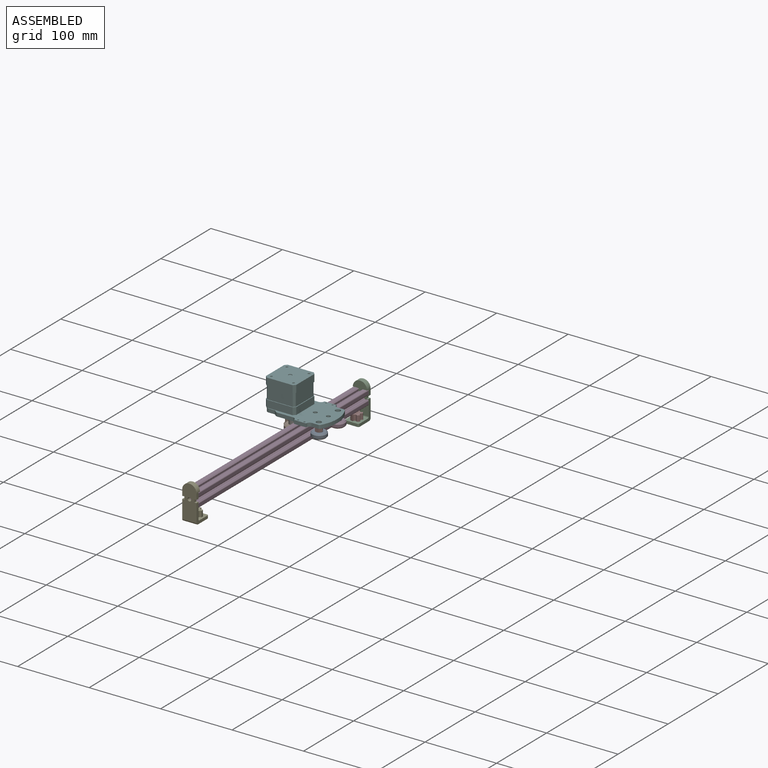
[diagram: assembled view]
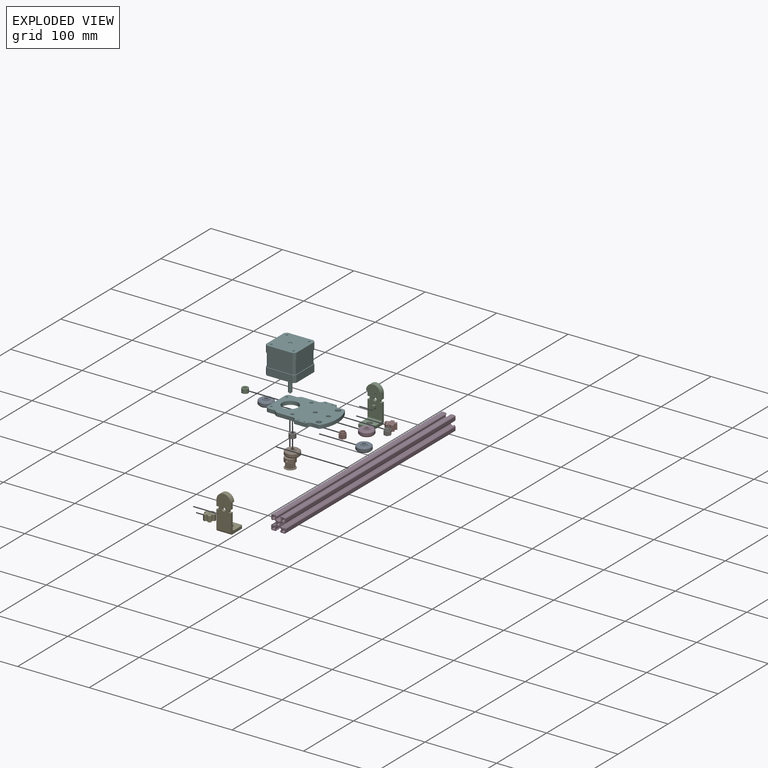
[diagram: exploded view]
GUIDED TOUR — MATED ASSEMBLY (Onshape document 58c58c23786ec50fe9e0f8d5, AutoMate assembly 58c58c23786ec50fe9e0f8d5_e4c704c081de971c1201e322_0e69b5b07482ab1bf563af40_default)

This assembly has 16 components, labeled P0..P15 below (a component is one placed occurrence of a part; the same part can appear more than once), held together by 11 mates. A mate is a constraint between two components; its type names the relative motion it leaves free:
  FASTENED — locks the two components together rigidly (no relative motion).
Axis/direction vectors are unit vectors and 'through' points are millimeter coordinates, both in the assembly's world frame.

MATES
  1. FASTENED "Fastened 5": P12 <-> P11, direction (0.000, 1.000, 0.000) through (-5.65, -187.65, -31.54) mm
  2. FASTENED "Fastened 4": P4 <-> P12, direction (0.000, 0.000, -1.000) through (-5.65, -177.64, -57.53) mm
  3. FASTENED "Fastened 2": P5 <-> P13, direction (0.000, 0.000, 1.000) through (-38.73, 57.13, -15.95) mm
  4. FASTENED "Fastened 15": P9 <-> P13, direction (0.000, 0.000, -1.000) through (-38.73, 57.13, -39.95) mm
  5. FASTENED "Fastened 3": P5 <-> P14, direction (0.000, 0.000, -1.000) through (-22.29, 38.07, -20.95) mm
  6. FASTENED "Fastened 7": P0 <-> P2, direction (0.000, 0.000, 1.000) through (-22.28, 75.07, -26.95) mm
  7. FASTENED "Fastened 7": P1 <-> P14, direction (0.000, 0.000, 1.000) through (-22.29, 38.07, -26.95) mm
  8. FASTENED "Fastened 8": P15 <-> P10, direction (0.000, 0.000, -1.000) through (-5.65, 142.36, -57.46) mm
  9. FASTENED "Fastened 1": P7 <-> P8, direction (0.000, 0.000, -1.000) through (14.72, 38.86, -26.95) mm
  10. FASTENED "Fastened 6": P10 <-> P11, direction (0.000, -1.000, 0.000) through (-5.65, 152.35, -31.46) mm
  11. FASTENED "Fastened 1": P6 <-> P3, direction (0.000, 0.000, -1.000) through (14.72, 75.86, -26.95) mm

ASSEMBLY ORDER
  1. P13 — the base component [order verified]
  2. P5 [order verified]
  3. P9 [order verified]
  4. P7 [order verified]
  5. P12 [order verified]
  6. P11 [order verified]
  7. P10 [order verified]
  8. P6 [order verified]
  9. P14 [order verified]
  10. P1 [order verified]
  11. P2 [order verified]
  12. P15 [order verified]
  13. P4 [order verified]
  14. P0 [order verified]
  15. P8 [order verified]
  16. P3 [order verified]
(P7, P9, P10 verified with a relaxed clearance tolerance: the source model stores slight part interference there.)
Order-tag legend:
  [order verified] — this step's position reverses a verified removal order: the component was checked to insert without passing through the ones already placed.

Of the 16 components, 4 carry the full construction recipe — the FeatureScript program that regenerates the part's solid from scratch; the rest are supplied as boundary geometry only.
Because this assembly has more than 12 components, the tour below covers the 12 most significant ones individually (every recipe-attached component first, then the largest by part volume), in assembly order; the remaining 4 are summarized together in a grouped section at the end.
Each toured component is shown spotlighted twice — in the assembled view, then in the exploded view, where a leader line traces a displaced component back to its assembled socket (saturated green if recipe-attached, orange if geometry-only; every other component desaturated gray) — followed by its recipe or geometry summary and the mates that hold it.
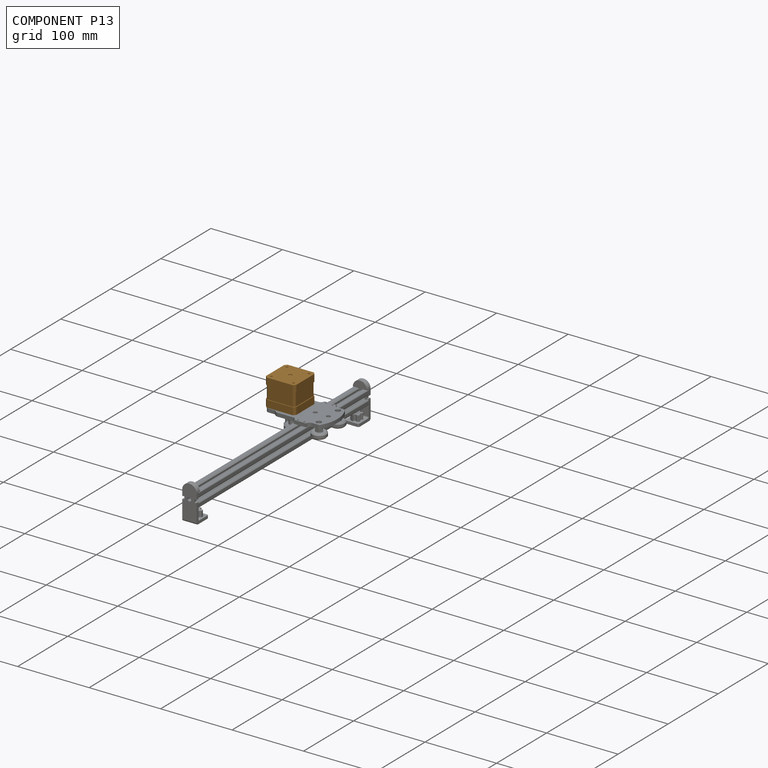
[diagram: component P13 — assembled]
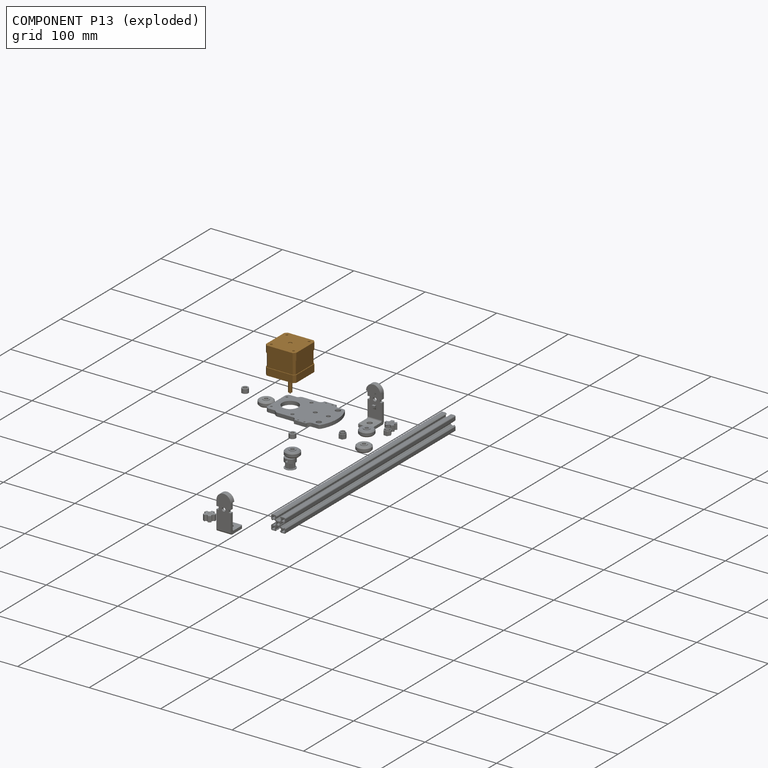
[diagram: component P13 — exploded]
COMPONENT P13 — geometry summary (no construction recipe available for this part):
  bounding box: 62.0 x 42.3 x 42.3 mm
  B-rep topology: 1 solid, 38 faces, 196 edges
  volume: 64548 mm^3 (58% of its bounding box)
  symmetry: 4-fold rotationally symmetric about the y axis; mirror-symmetric across its x mid-plane, z mid-plane
Held by: FASTENED mate "Fastened 2" to P5; FASTENED mate "Fastened 15" to P9.
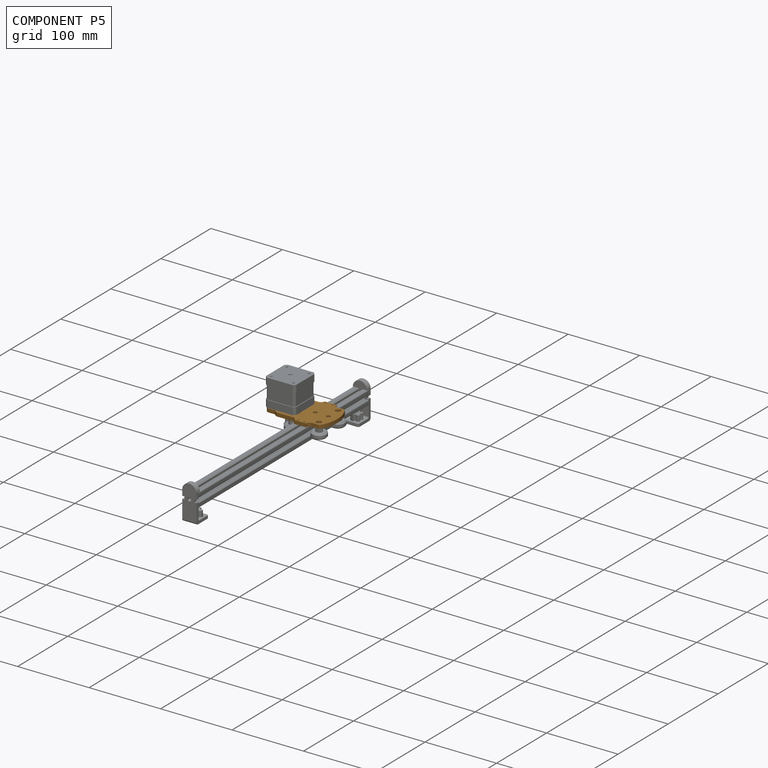
[diagram: component P5 — assembled]
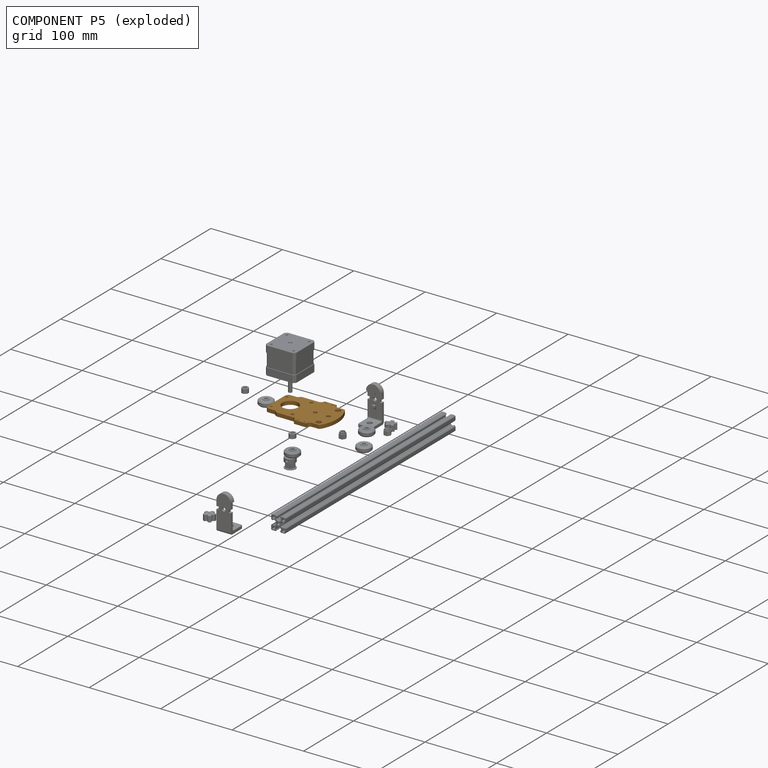
[diagram: component P5 — exploded]
COMPONENT P5 — geometry summary (no construction recipe available for this part):
  bounding box: 85.6 x 61.2 x 5.0 mm
  B-rep topology: 1 solid, 38 faces, 216 edges
  volume: 18715 mm^3 (71% of its bounding box)
  symmetry: 2-fold rotationally symmetric about the x axis; mirror-symmetric across its y mid-plane, z mid-plane
Held by: FASTENED mate "Fastened 2" to P13; FASTENED mate "Fastened 3" to P14.
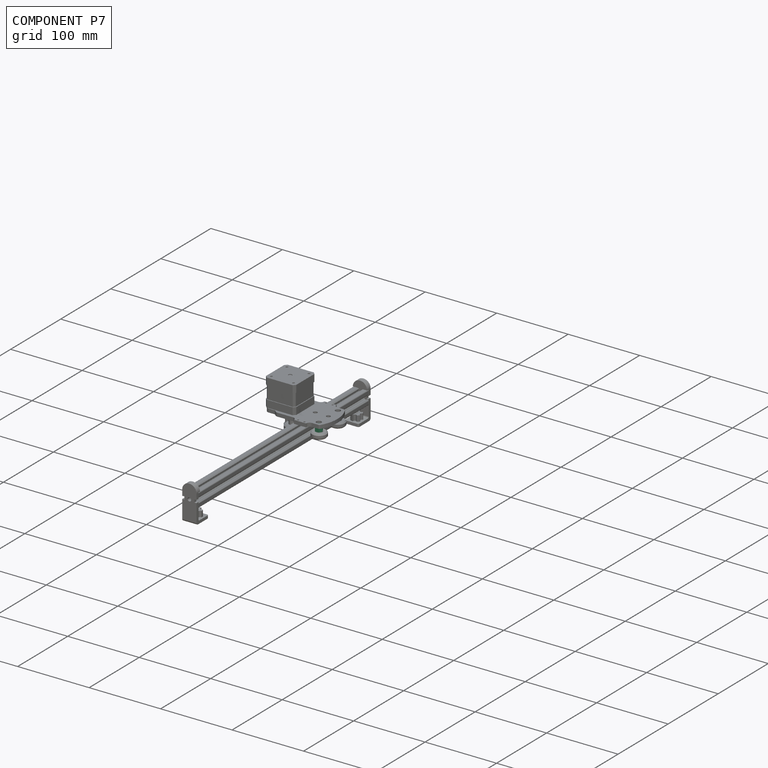
[diagram: component P7 — assembled]
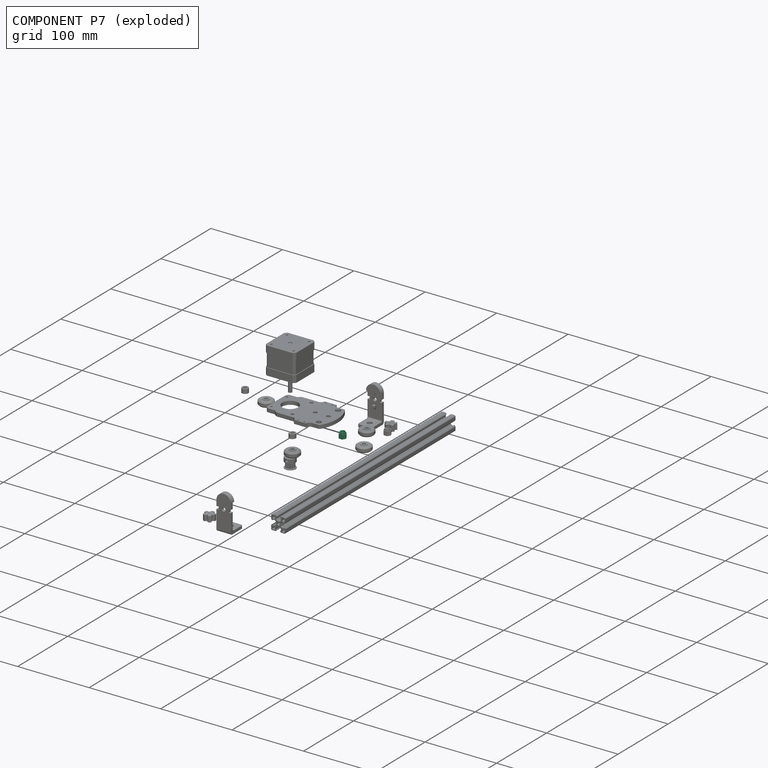
[diagram: component P7 — exploded]
COMPONENT P7 — same part as P6 (CADFS 00084789); its construction recipe is shown at P6.
Held by: FASTENED mate "Fastened 1" to P8.
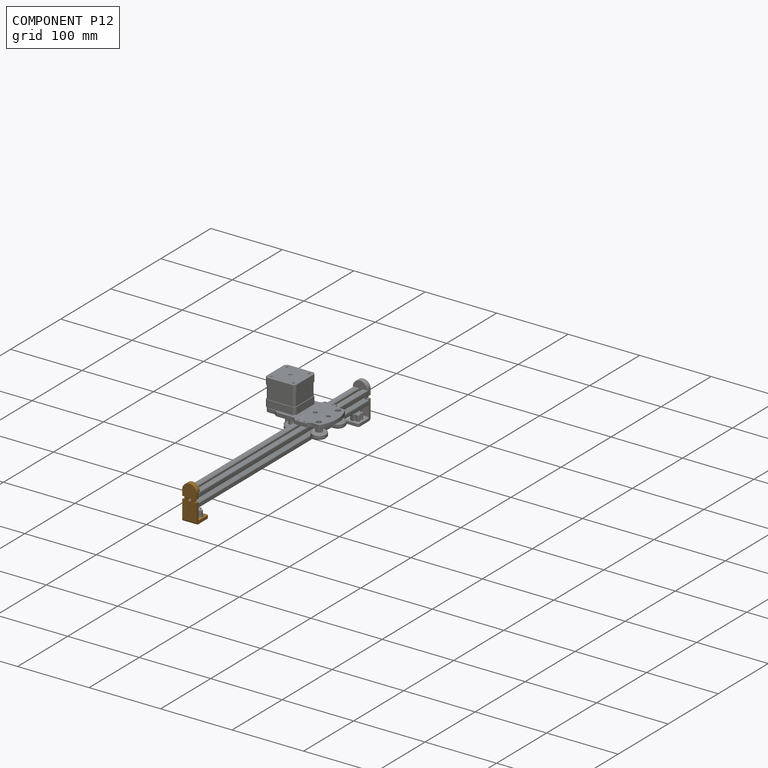
[diagram: component P12 — assembled]
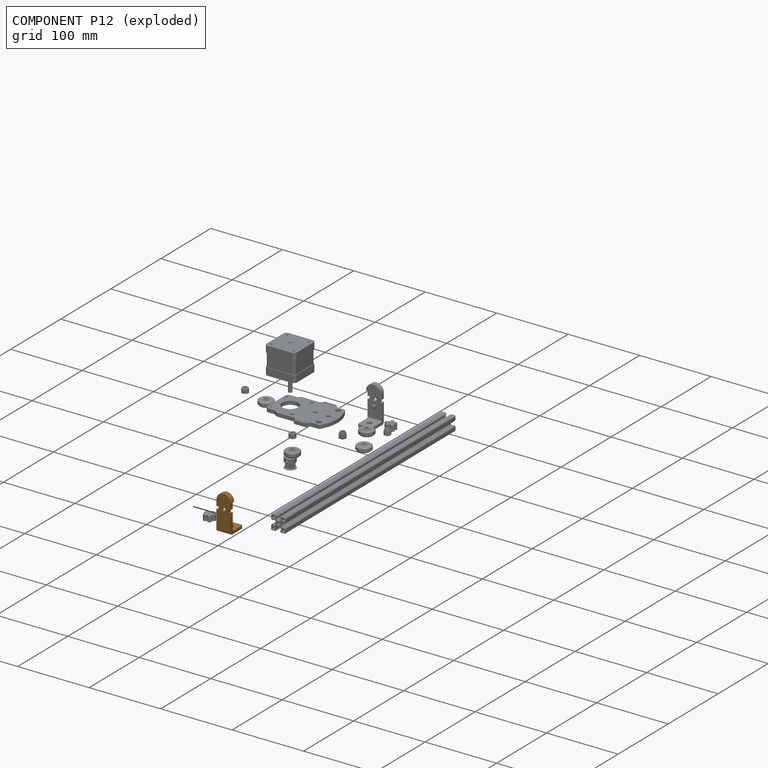
[diagram: component P12 — exploded]
COMPONENT P12 — geometry summary (no construction recipe available for this part):
  bounding box: 50.0 x 24.0 x 20.0 mm
  B-rep topology: 1 solid, 33 faces, 178 edges
  volume: 5622 mm^3 (23% of its bounding box)
  symmetry: mirror-symmetric across its y mid-plane
Held by: FASTENED mate "Fastened 5" to P11; FASTENED mate "Fastened 4" to P4.
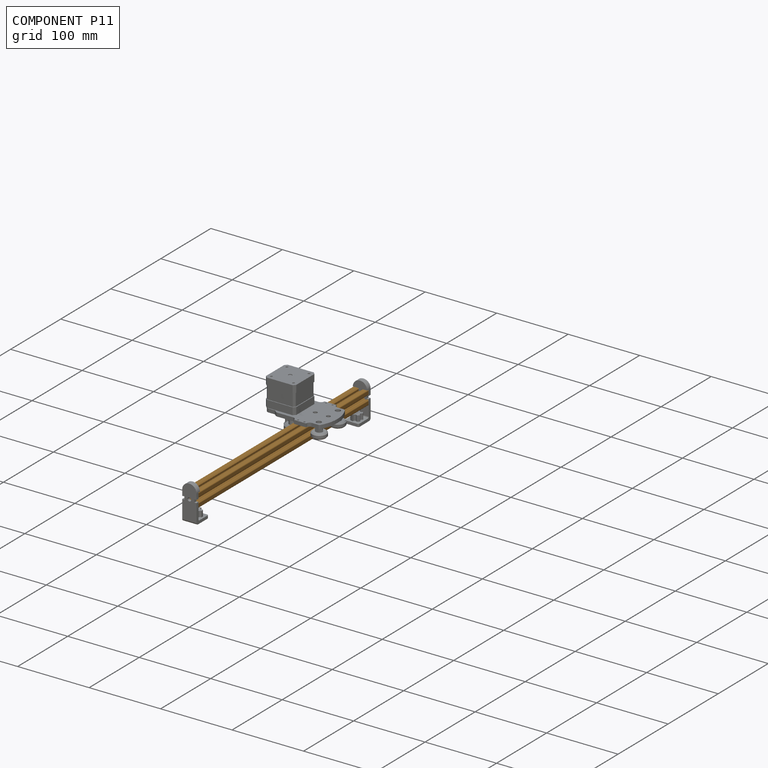
[diagram: component P11 — assembled]
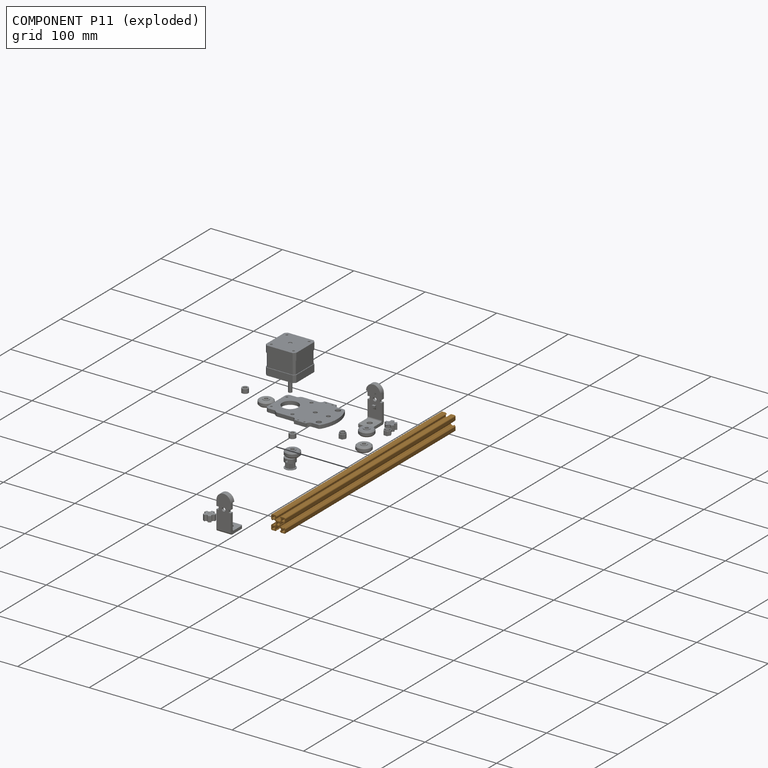
[diagram: component P11 — exploded]
COMPONENT P11 — geometry summary (no construction recipe available for this part):
  bounding box: 340.0 x 20.0 x 20.0 mm
  B-rep topology: 1 solid, 111 faces, 654 edges
  volume: 51236 mm^3 (38% of its bounding box)
  symmetry: 2-fold rotationally symmetric about the x axis; 2-fold rotationally symmetric about the y axis; 4-fold rotationally symmetric about the z axis; mirror-symmetric across its x mid-plane, y mid-plane, z mid-plane
Held by: FASTENED mate "Fastened 5" to P12; FASTENED mate "Fastened 6" to P10.
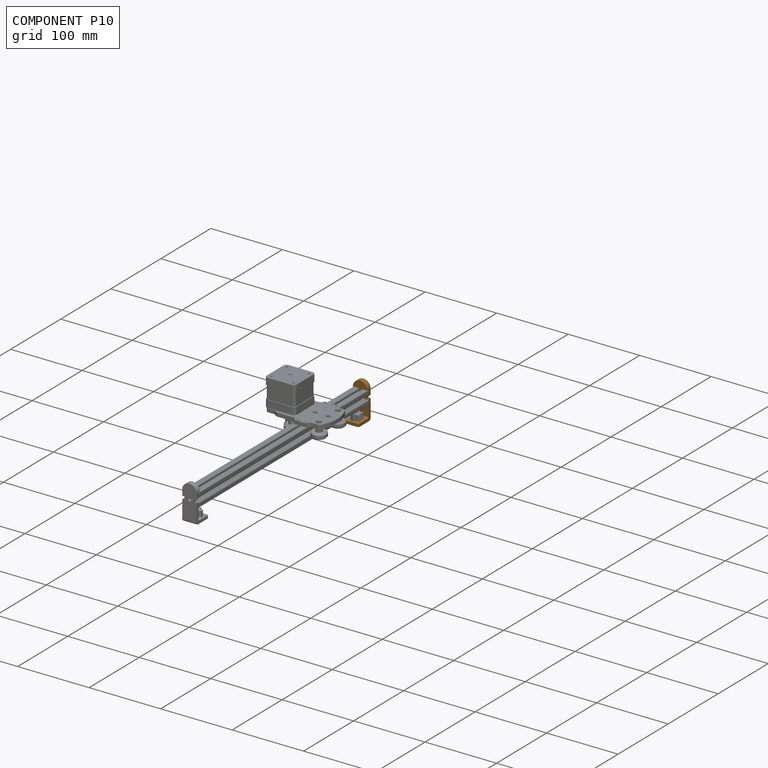
[diagram: component P10 — assembled]
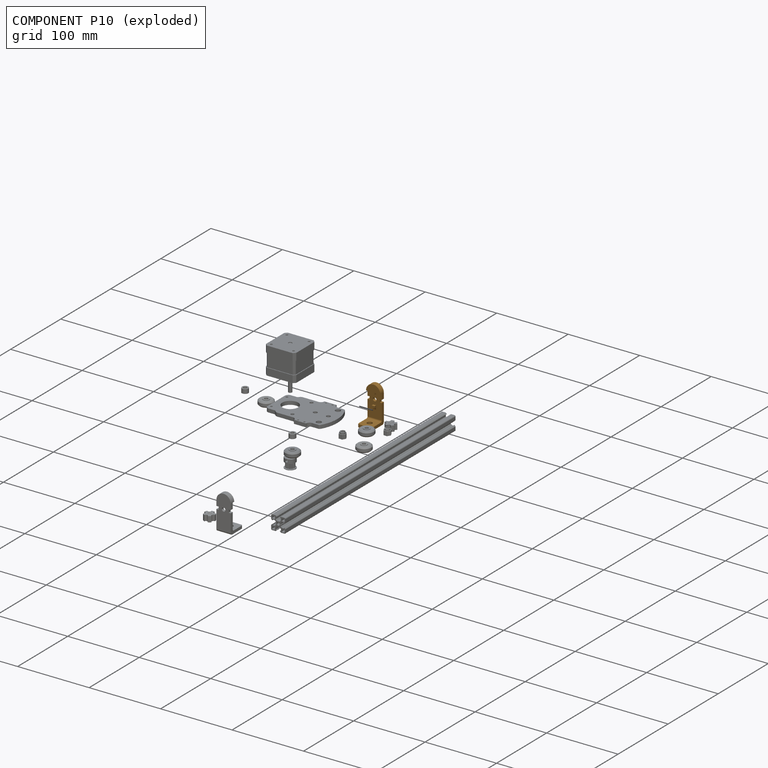
[diagram: component P10 — exploded]
COMPONENT P10 — geometry summary (no construction recipe available for this part):
  bounding box: 50.0 x 24.0 x 20.0 mm
  B-rep topology: 1 solid, 33 faces, 178 edges
  volume: 5622 mm^3 (23% of its bounding box)
  symmetry: mirror-symmetric across its y mid-plane
Held by: FASTENED mate "Fastened 8" to P15; FASTENED mate "Fastened 6" to P11.
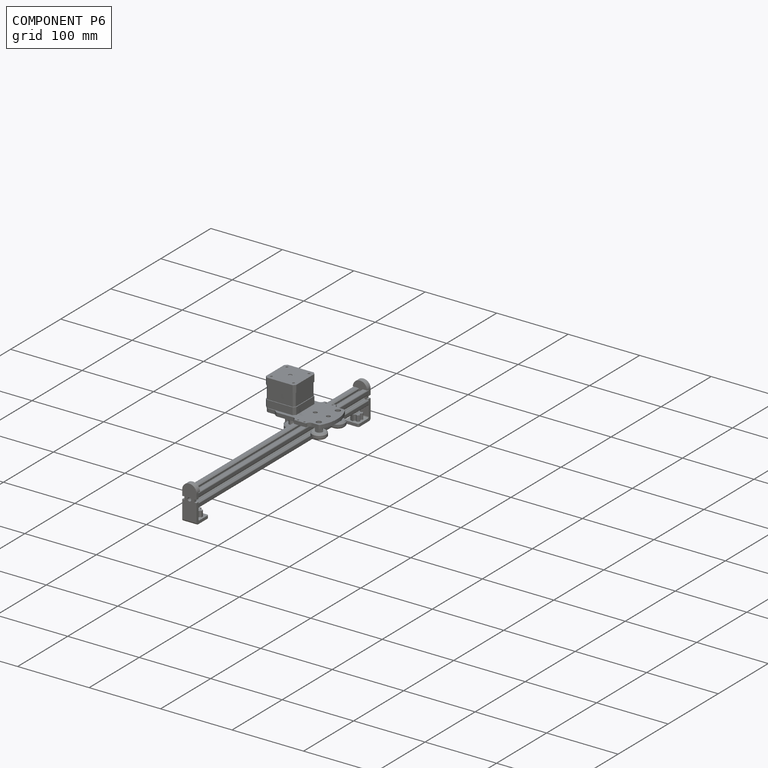
[diagram: component P6 — assembled]
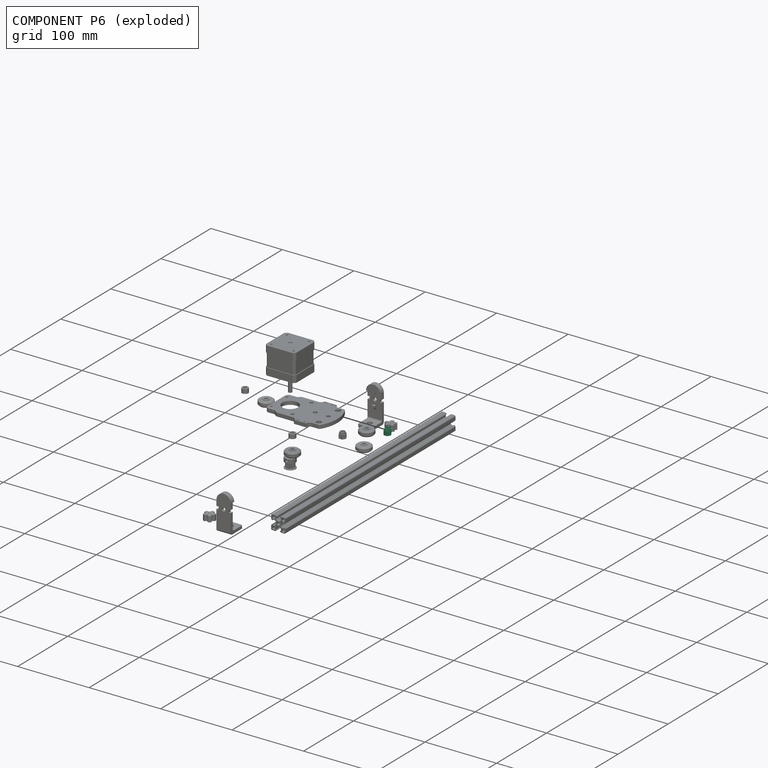
[diagram: component P6 — exploded]
COMPONENT P6 — recipe-attached (CADFS 00084789, mesh-verified: the recipe's output STEP matches this component's geometry to below the mesh-comparison resolution (tessellation chordal tolerance ~0.0232 mm)).
Held by: FASTENED mate "Fastened 1" to P3.
Construction recipe (FeatureScript — the CAD program that rebuilds this solid; sketch coordinates are in the units given by the * unit suffixes, e.g. mm):

FeatureScript 1732;
import(path : "onshape/std/geometry.fs", version : "1732.0");
import(path : "onshape/std/common.fs", version : "1732.0");
const mm = millimeter;
const VERTEX = EntityType.VERTEX;
const EDGE = EntityType.EDGE;
const FACE = EntityType.FACE;
const BODY = EntityType.BODY;
function v(x, y){return vector(x, y);}
function OD(order){return orderDisambiguation(order);}
function OSD(set){return originalSetDisambiguation(set);}
function TD(topology){return topologyDisambiguation(topology);}
function TDD(query){return trueDependencyDisambiguation(query);}
function sQuery(a, b, c) {return sketchEntityQuery(a, b, c);}

annotation { "Feature Type Name" : "Feature", "Feature Type Description" : "" }
export const myFeature = defineFeature(function(context is Context, id is Id, definition is map)
    precondition{}
    {
        {
            var Q0;
            Q0=qCreatedBy(makeId("Top.planeOp"),FACE);
            var sketch = newSketch(context, id + "F0", { "sketchPlane" : qUnion([Q0])});
            skCircle(sketch, "E0.cCircle", {"center": v(0, 0) * mm, "radius": 5 * mm, "construction": true});
            skLineSegment(sketch, "E0.0", {"start": v(-2.5, 4.33) * mm, "end": v(2.5, 4.33) * mm});
            skLineSegment(sketch, "E0.1", {"start": v(2.5, 4.33) * mm, "end": v(5, 0) * mm});
            skLineSegment(sketch, "E0.2", {"start": v(5, 0) * mm, "end": v(2.5, -4.33) * mm});
            skLineSegment(sketch, "E0.3", {"start": v(2.5, -4.33) * mm, "end": v(-2.5, -4.33) * mm});
            skLineSegment(sketch, "E0.4", {"start": v(-2.5, -4.33) * mm, "end": v(-5, 0) * mm});
            skLineSegment(sketch, "E0.5", {"start": v(-5, 0) * mm, "end": v(-2.5, 4.33) * mm});
            skLineSegment(sketch, "E1", {"start": v(0, 0) * mm, "end": v(0, 0.79) * mm, "construction": true});
            skCircle(sketch, "E2", {"center": v(0, 0) * mm, "radius": 3.55 * mm});
            skCircle(sketch, "E3", {"center": v(0, 0.79) * mm, "radius": 2.5 * mm});
            skSolve(sketch);
        }
        {
            var Q0;
            Q0=makeQuery(id+"F0.imprint","IMPRINT",FACE,{"disambiguationData":[TD([[makeQuery(id+"F0.imprint","IMPRINT",EDGE,{"derivedFrom":sQuery(id+"F0.wireOp",EDGE,"E0.0")}),-1.0]])]});
            extrude(context, id + "F1", {"entities" : qUnion([Q0]), "depth" : 6 * mm});
        }
        {
            var Q0;
            Q0=makeQuery(id+"F0.imprint","IMPRINT",FACE,{"disambiguationData":[TD([[makeQuery(id+"F0.imprint","IMPRINT",EDGE,{"derivedFrom":sQuery(id+"F0.wireOp",EDGE,"E2")}),1.0]])]});
            extrude(context, id + "F2", {"entities" : qUnion([Q0]), "operationType" : NewBodyOperationType.ADD, "depth" : 8 * mm});
        }
    });
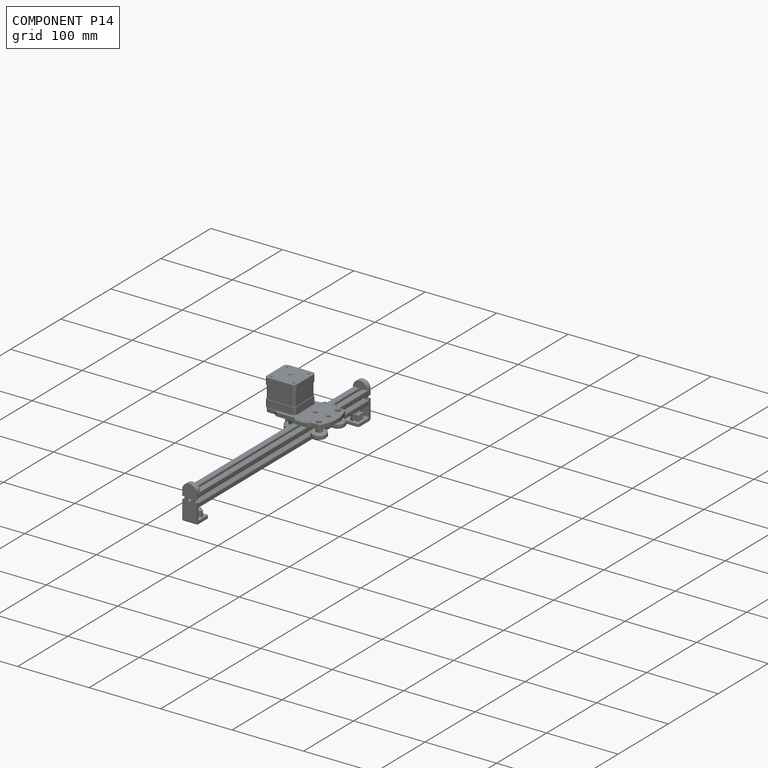
[diagram: component P14 — assembled]
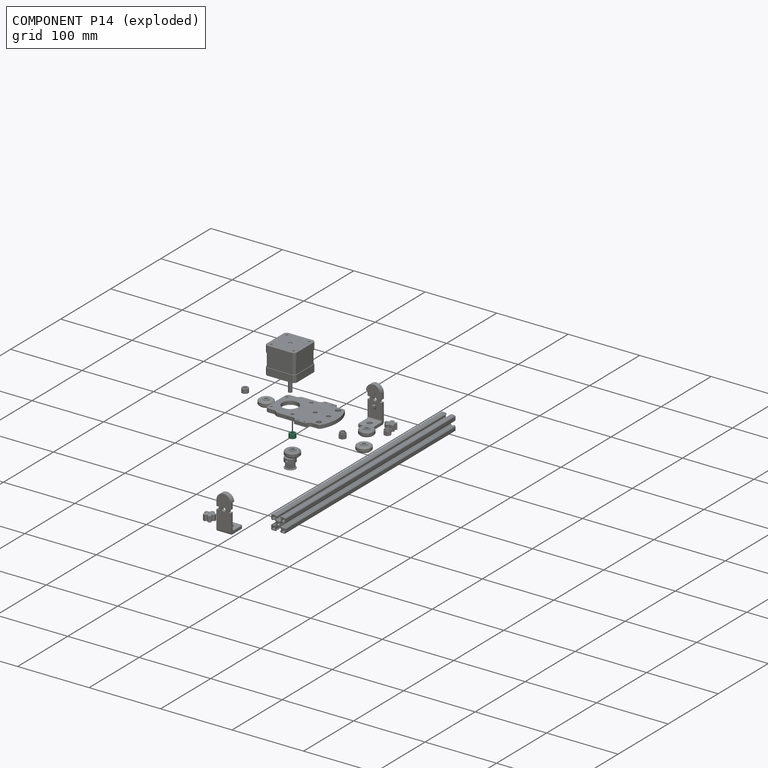
[diagram: component P14 — exploded]
COMPONENT P14 — same part as P2 (CADFS 00084788); its construction recipe is shown at P2.
Held by: FASTENED mate "Fastened 3" to P5; FASTENED mate "Fastened 7" to P1.
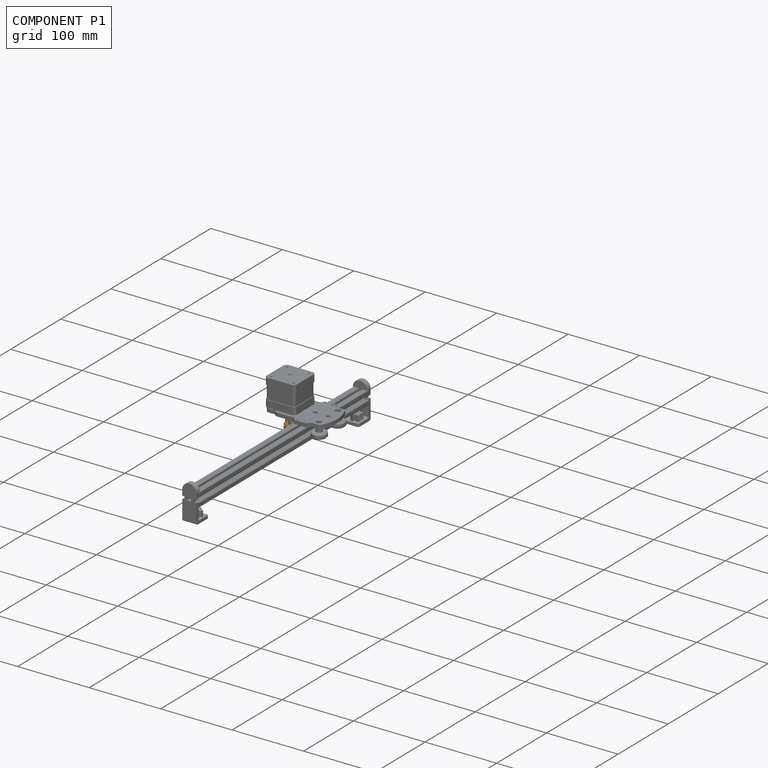
[diagram: component P1 — assembled]
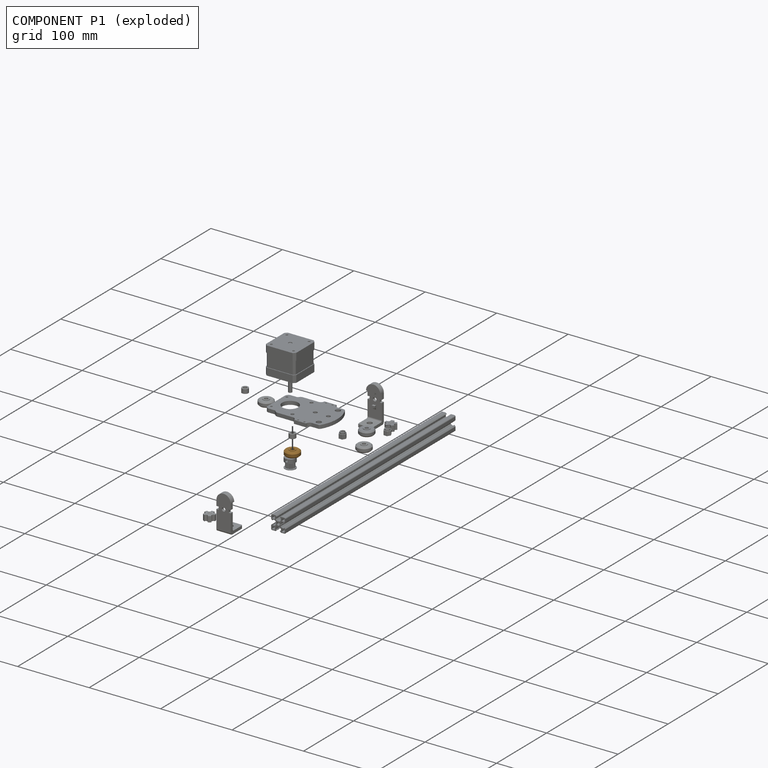
[diagram: component P1 — exploded]
COMPONENT P1 — geometry summary (no construction recipe available for this part):
  bounding box: 20.0 x 20.0 x 8.5 mm
  B-rep topology: 1 solid, 10 faces, 32 edges
  volume: 1993 mm^3 (59% of its bounding box)
  symmetry: 2-fold rotationally symmetric about the x axis; 2-fold rotationally symmetric about the y axis; revolution-symmetric about the z axis through its bounding-box center; mirror-symmetric across its x mid-plane, y mid-plane, z mid-plane
Held by: FASTENED mate "Fastened 7" to P14.
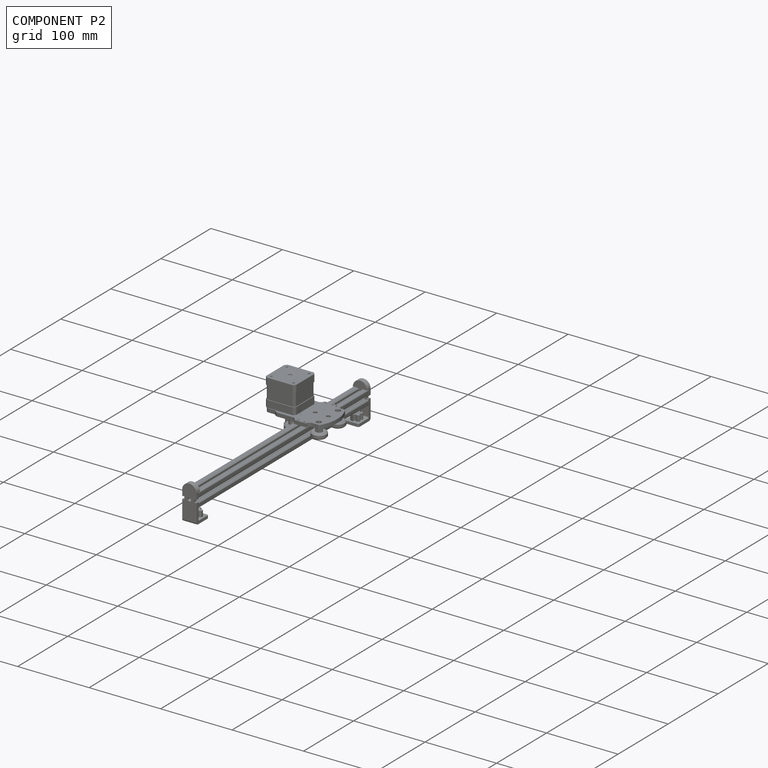
[diagram: component P2 — assembled]
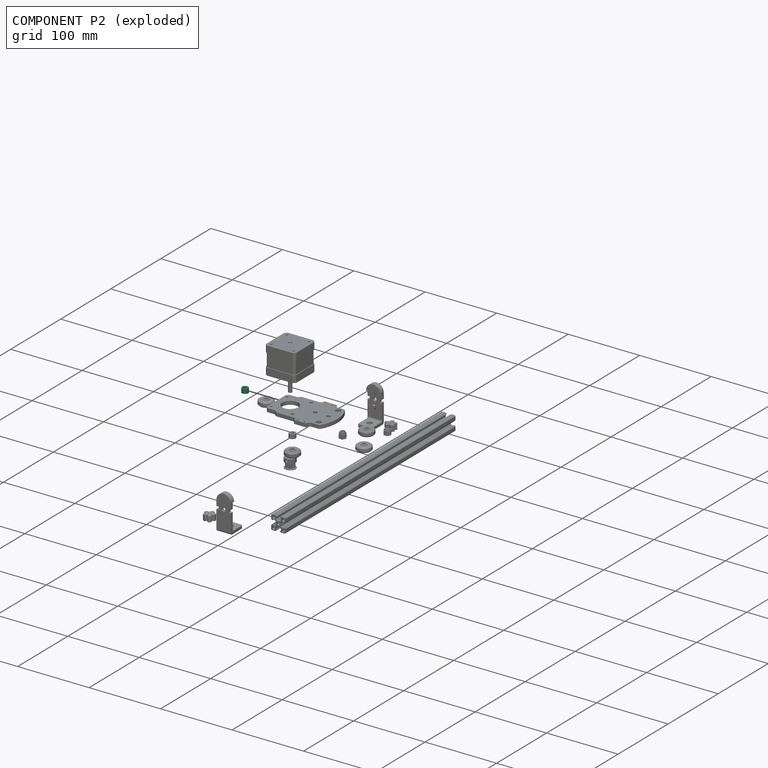
[diagram: component P2 — exploded]
COMPONENT P2 — recipe-attached (CADFS 00084788, mesh-verified: the recipe's output STEP matches this component's geometry to below the mesh-comparison resolution (tessellation chordal tolerance ~0.0211 mm)).
Held by: FASTENED mate "Fastened 7" to P0.
Construction recipe (FeatureScript — the CAD program that rebuilds this solid; sketch coordinates are in the units given by the * unit suffixes, e.g. mm):

FeatureScript 1732;
import(path : "onshape/std/geometry.fs", version : "1732.0");
import(path : "onshape/std/common.fs", version : "1732.0");
const mm = millimeter;
const VERTEX = EntityType.VERTEX;
const EDGE = EntityType.EDGE;
const FACE = EntityType.FACE;
const BODY = EntityType.BODY;
function v(x, y){return vector(x, y);}
function OD(order){return orderDisambiguation(order);}
function OSD(set){return originalSetDisambiguation(set);}
function TD(topology){return topologyDisambiguation(topology);}
function TDD(query){return trueDependencyDisambiguation(query);}
function sQuery(a, b, c) {return sketchEntityQuery(a, b, c);}

annotation { "Feature Type Name" : "Feature", "Feature Type Description" : "" }
export const myFeature = defineFeature(function(context is Context, id is Id, definition is map)
    precondition{}
    {
        {
            var Q0;
            Q0=qCreatedBy(makeId("Top.planeOp"),FACE);
            var sketch = newSketch(context, id + "F0", { "sketchPlane" : qUnion([Q0])});
            skCircle(sketch, "E0", {"center": v(0, 0) * mm, "radius": 4.5 * mm});
            skCircle(sketch, "E1", {"center": v(0, 0) * mm, "radius": 2.6 * mm});
            skSolve(sketch);
        }
        {
            var Q0;
            Q0=makeQuery(id+"F0.imprint","IMPRINT",FACE,{"disambiguationData":[TD([[makeQuery(id+"F0.imprint","IMPRINT",EDGE,{"derivedFrom":sQuery(id+"F0.wireOp",EDGE,"E0")}),1.0]])]});
            extrude(context, id + "F1", {"entities" : qUnion([Q0]), "depth" : 6 * mm});
        }
    });
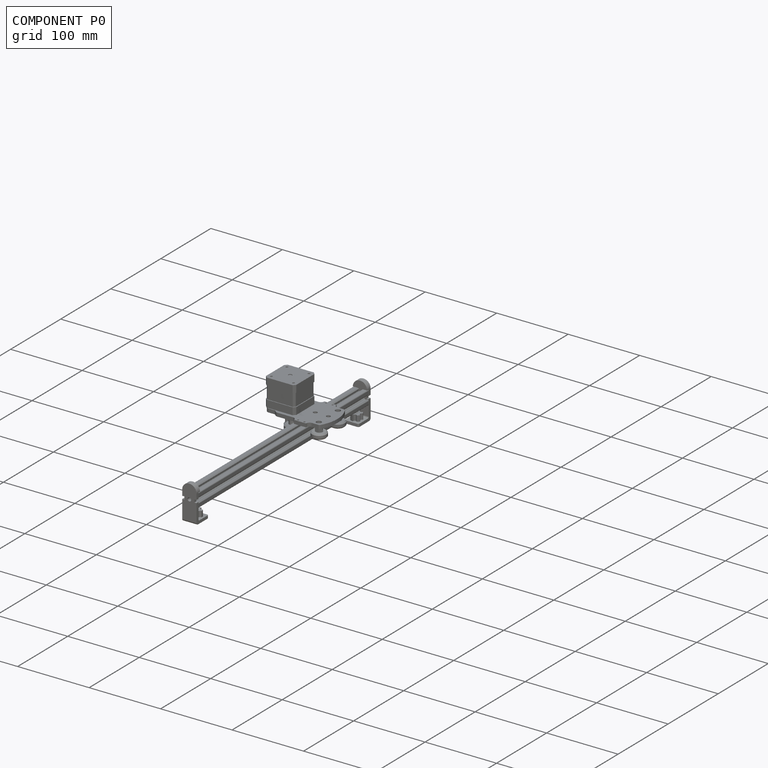
[diagram: component P0 — assembled]
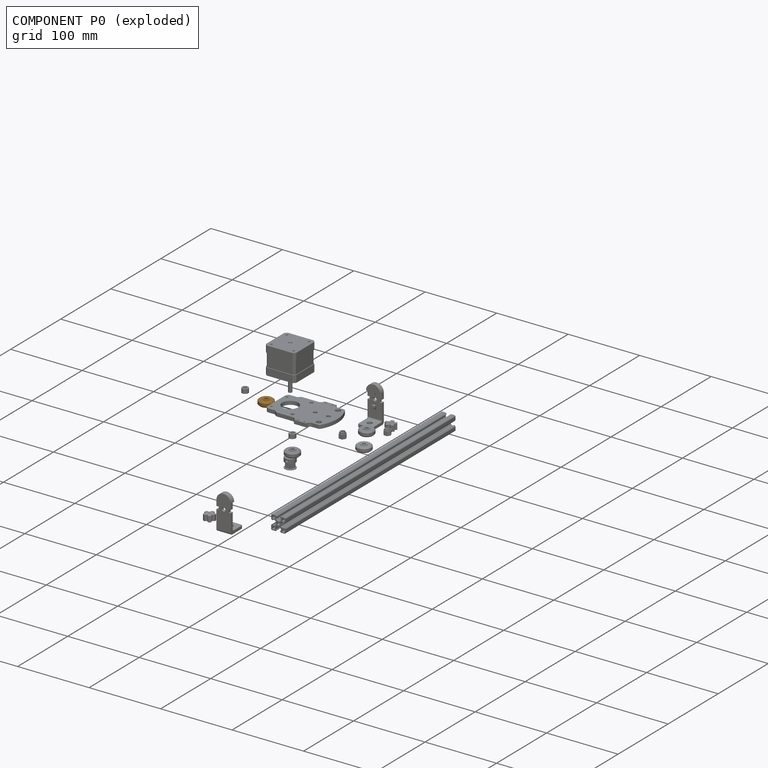
[diagram: component P0 — exploded]
COMPONENT P0 — geometry summary (no construction recipe available for this part):
  bounding box: 20.0 x 20.0 x 8.5 mm
  B-rep topology: 1 solid, 10 faces, 32 edges
  volume: 1993 mm^3 (59% of its bounding box)
  symmetry: 2-fold rotationally symmetric about the x axis; 2-fold rotationally symmetric about the y axis; revolution-symmetric about the z axis through its bounding-box center; mirror-symmetric across its x mid-plane, y mid-plane, z mid-plane
Held by: FASTENED mate "Fastened 7" to P2.
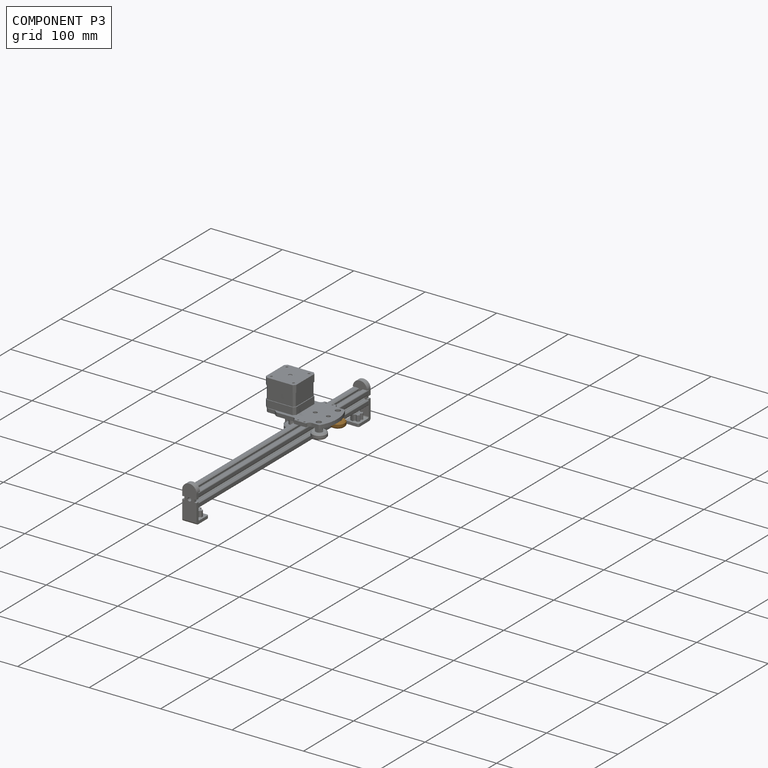
[diagram: component P3 — assembled]
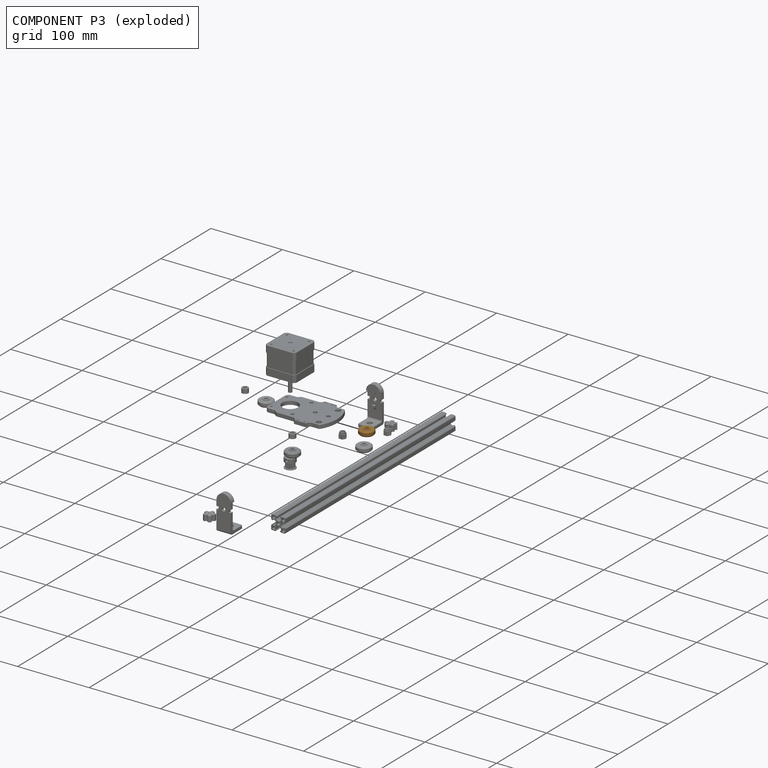
[diagram: component P3 — exploded]
COMPONENT P3 — geometry summary (no construction recipe available for this part):
  bounding box: 20.0 x 20.0 x 8.5 mm
  B-rep topology: 1 solid, 10 faces, 32 edges
  volume: 1993 mm^3 (59% of its bounding box)
  symmetry: 2-fold rotationally symmetric about the x axis; 2-fold rotationally symmetric about the y axis; revolution-symmetric about the z axis through its bounding-box center; mirror-symmetric across its x mid-plane, y mid-plane, z mid-plane
Held by: FASTENED mate "Fastened 1" to P6.
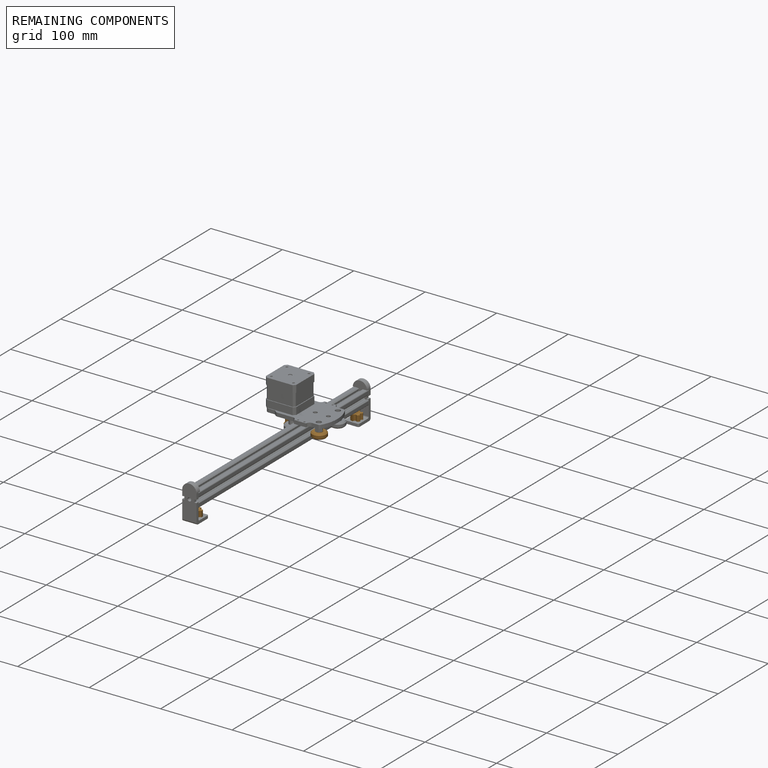
[diagram: remaining components — assembled]
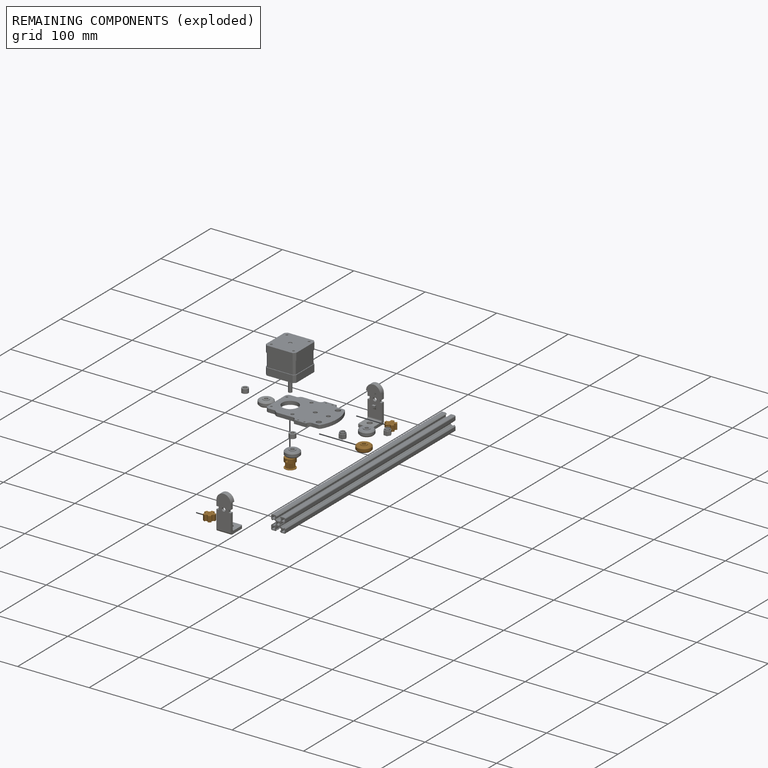
[diagram: remaining components — exploded]
REMAINING COMPONENTS (grouped) — the 4 components below fall outside the per-component tour by the significance rule stated above; both spotlight views highlight the whole group.
  P9: bounding box 15.0 x 15.0 x 14.0 mm, volume 1582 mm^3. Held by: FASTENED mate "Fastened 15" to P13.
  P15: bounding box 15.6 x 15.2 x 9.9 mm, volume 872 mm^3. Held by: FASTENED mate "Fastened 8" to P10.
  P4: bounding box 15.6 x 15.2 x 9.9 mm, volume 872 mm^3. Held by: FASTENED mate "Fastened 4" to P12.
  P8: bounding box 20.0 x 20.0 x 8.5 mm, volume 1993 mm^3. Held by: FASTENED mate "Fastened 1" to P7.
PROVENANCE & LICENSES
Assembly (occurrences, transforms, mates, per-part STEP geometry): AutoMate dataset, Zenodo record 7776208, CC0.
Construction recipes: CADFS (HuggingFace VladPyatov/CADFS, CC-BY-4.0, layered over the ABC dataset), FeatureScript reconstruction programs keyed by ABC model id.
Join: ABC meta listings map ABC model id -> Onshape documentId; within a shared document, parts are matched by geometric signature (bounding-box dims + volume at 0.1% relative tolerance, exact B-rep face/solid counts).
Verification: 4 of this assembly's 16 components carry a recipe attachment, and every attachment is mesh-verified: the CADFS STEP and the AutoMate member STEP were compared as meshes in their shared local frame (symmetric sampled-point-to-mesh distance); worst across the 4 attachments: below the mesh-comparison resolution (tessellation chordal tolerance ~0.0232 mm) on a 15 mm part.
Renders: orthographic iso camera (az 35 / el 25); the floor grid conveys scale (grid pitch printed in each image; no ruler). In the exploded view each component is displaced by its stored offset vector: the offsets alone carry the explosion direction (mate normal/axis signs are not orientation cues and do not encode it), and separation distances are assigned per mate-chain, not proportionally to assembly-order depth.
